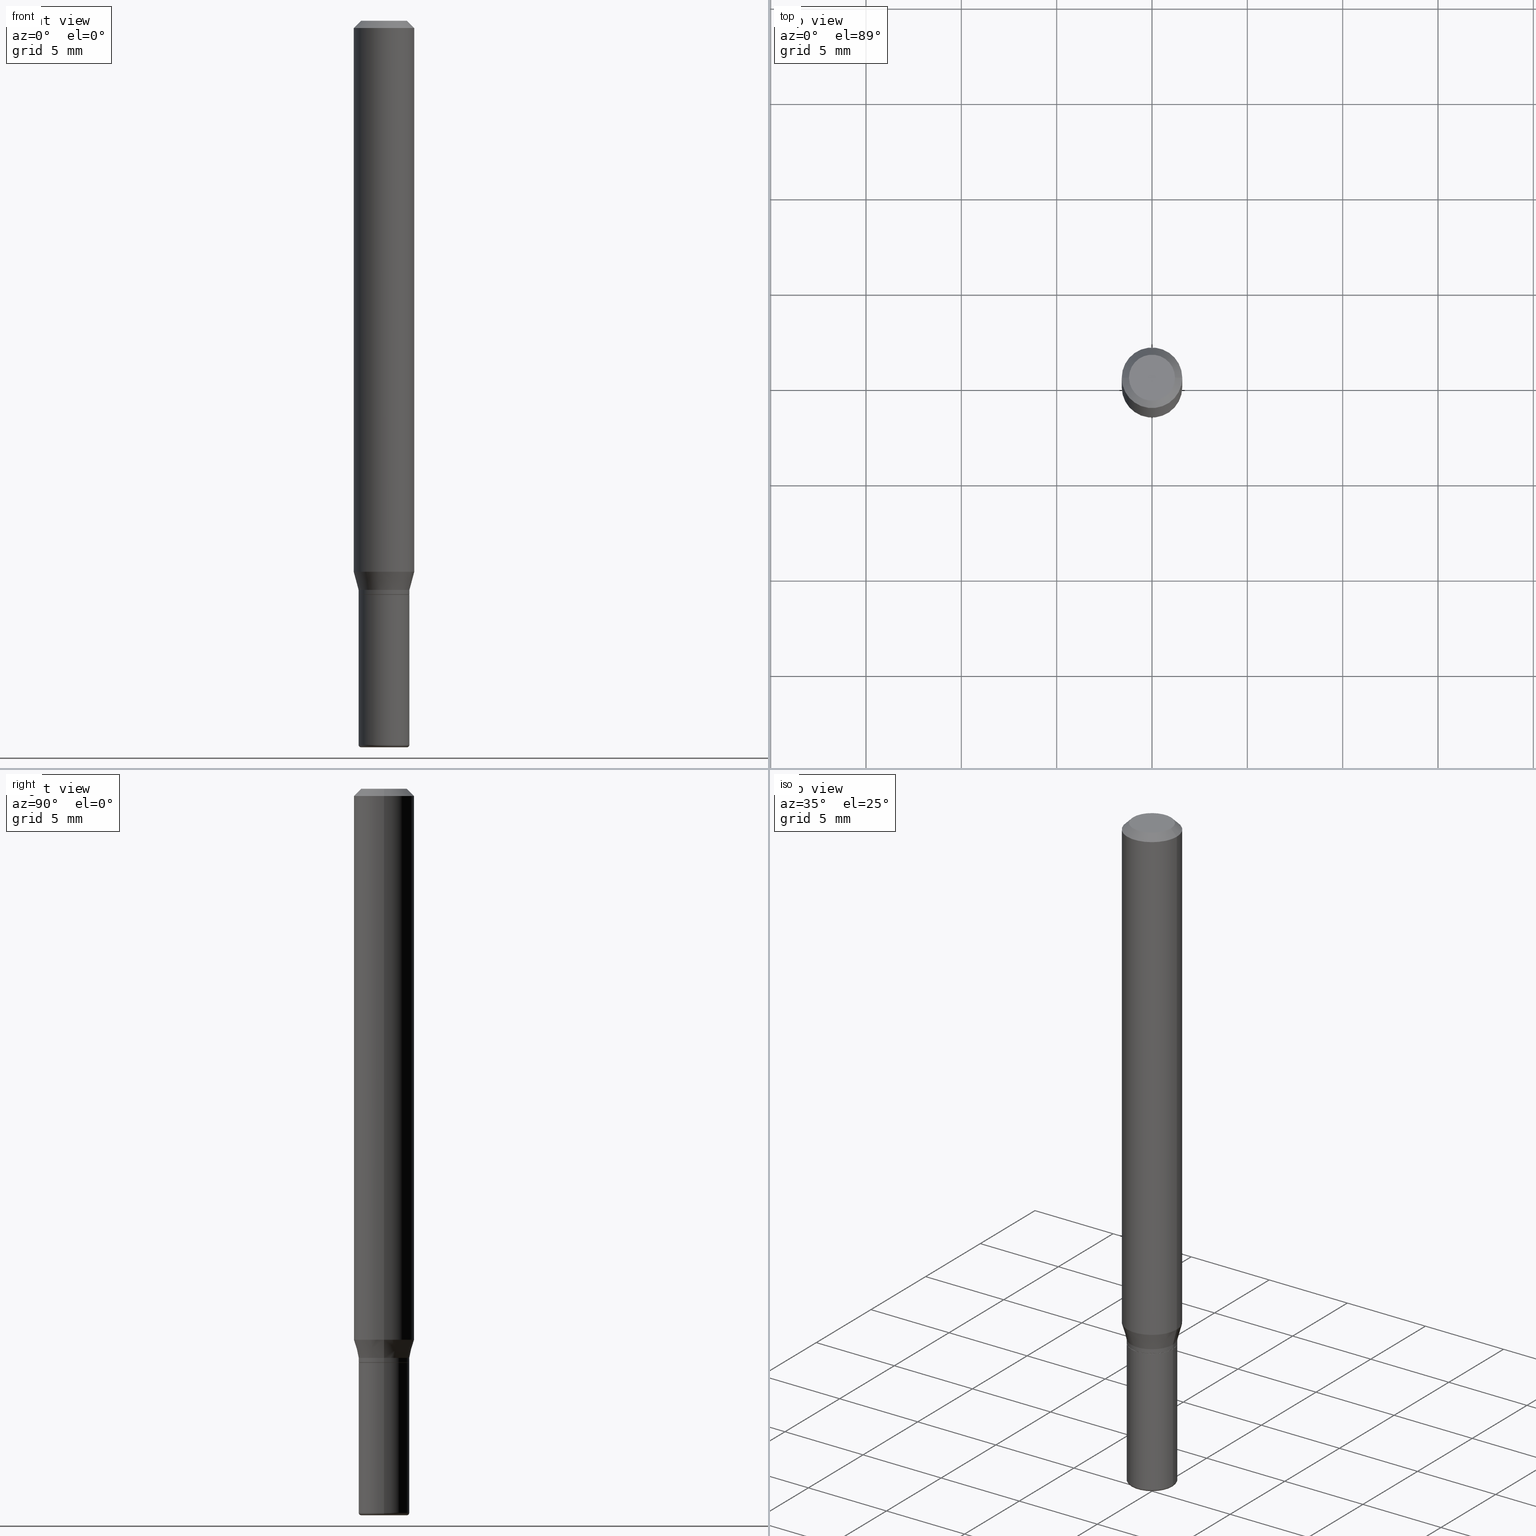
[diagram: canonical four-view strip — front | top / right | iso, engineering-drawing reading convention]
A machine part, canonical four-view strip (front | top / right | iso — engineering-drawing reading convention). The complete STEP part file that produces these views, byte-faithful:
ISO-10303-21;
HEADER;
FILE_DESCRIPTION (( 'STEP AP203' ),
    '1' );
FILE_NAME ('08743.STEP',
    '2024-02-29T20:45:07',
    ( '' ),
    ( '' ),
    'SwSTEP 2.0',
    'SolidWorks 2023',
    '' );
FILE_SCHEMA (( 'CONFIG_CONTROL_DESIGN' ));
ENDSEC;

DATA;
#1 = DIRECTION ( 'NONE',  ( -2.445468806185136877E-29, 3.491481338843145188E-15, 1.000000000000000000 ) ) ;
#2 = CIRCLE ( 'NONE', #320, 0.06250000000000000000 ) ;
#3 = EDGE_CURVE ( 'NONE', #406, #503, #52, .T. ) ;
#4 = AXIS2_PLACEMENT_3D ( 'NONE', #452, #369, #244 ) ;
#5 =( CONVERSION_BASED_UNIT ( 'INCH', #483 ) LENGTH_UNIT ( ) NAMED_UNIT ( #100 ) );
#6 = VERTEX_POINT ( 'NONE', #361 ) ;
#7 = DIRECTION ( 'NONE',  ( -2.445468806185136597E-29, 3.491481338843145583E-15, 1.000000000000000000 ) ) ;
#8 = DIRECTION ( 'NONE',  ( -2.445468806185136597E-29, 3.491481338843145583E-15, 1.000000000000000000 ) ) ;
#9 = CC_DESIGN_DATE_AND_TIME_ASSIGNMENT ( #30, #218, ( #459 ) ) ;
#10 = EDGE_LOOP ( 'NONE', ( #134, #460, #446, #449 ) ) ;
#11 = AXIS2_PLACEMENT_3D ( 'NONE', #239, #18, #179 ) ;
#12 = CIRCLE ( 'NONE', #334, 0.04749999999999998668 ) ;
#13 = ORIENTED_EDGE ( 'NONE', *, *, #278, .F. ) ;
#14 = LOCAL_TIME ( 15, 45, 7.000000000000000000, #506 ) ;
#15 = APPROVAL_STATUS ( 'not_yet_approved' ) ;
#16 = DATE_AND_TIME ( #56, #14 ) ;
#17 = EDGE_CURVE ( 'NONE', #265, #328, #381, .T. ) ;
#18 = DIRECTION ( 'NONE',  ( -2.438088387897960049E-29, 3.491481338843145188E-15, 1.000000000000000000 ) ) ;
#19 = DIRECTION ( 'NONE',  ( 1.000000000000000000, -6.982962677686258033E-15, 0.000000000000000000 ) ) ;
#20 = CARTESIAN_POINT ( 'NONE',  ( 0.06250000000000000000, -4.811533449433669144E-16, -0.01499999999999970281 ) ) ;
#21 = CIRCLE ( 'NONE', #233, 0.06250000000000000000 ) ;
#22 = VECTOR ( 'NONE', #246, 39.37007874015748143 ) ;
#23 = CARTESIAN_POINT ( 'NONE',  ( 0.05200000000000008782, -4.500519445768814483E-15, -1.185000000000000053 ) ) ;
#24 = DIRECTION ( 'NONE',  ( -2.445468806185136597E-29, 3.491481338843145583E-15, 1.000000000000000000 ) ) ;
#25 = APPROVAL_PERSON_ORGANIZATION ( #388, #232, #349 ) ;
#26 = CARTESIAN_POINT ( 'NONE',  ( 3.655975865246779122E-29, -5.219764601570503141E-15, -1.495000000000000107 ) ) ;
#27 = DIRECTION ( 'NONE',  ( -2.445468806185136597E-29, 3.491481338843145583E-15, 1.000000000000000000 ) ) ;
#28 = DIRECTION ( 'NONE',  ( -2.445468806185136597E-29, 3.491481338843145583E-15, 1.000000000000000000 ) ) ;
#29 = EDGE_CURVE ( 'NONE', #501, #105, #119, .T. ) ;
#30 = DATE_AND_TIME ( #270, #248 ) ;
#31 = DIRECTION ( 'NONE',  ( 1.000000000000000000, -6.982962677686258033E-15, 0.000000000000000000 ) ) ;
#32 = AXIS2_PLACEMENT_3D ( 'NONE', #464, #181, #159 ) ;
#33 = ADVANCED_FACE ( 'NONE', ( #500 ), #373, .T. ) ;
#34 = ORIENTED_EDGE ( 'NONE', *, *, #53, .F. ) ;
#35 = DIRECTION ( 'NONE',  ( -1.000000000000000000, 6.982962677686266711E-15, 0.000000000000000000 ) ) ;
#36 = ORIENTED_EDGE ( 'NONE', *, *, #53, .T. ) ;
#37 = CONICAL_SURFACE ( 'NONE', #172, 0.05200000000000008782, 0.7853981633975507526 ) ;
#38 = VECTOR ( 'NONE', #484, 39.37007874015748143 ) ;
#39 = CARTESIAN_POINT ( 'NONE',  ( 2.873425847267536398E-29, -4.102490573140697470E-15, -1.175000000000000488 ) ) ;
#40 = PRODUCT_RELATED_PRODUCT_CATEGORY ( 'detail', '', ( #243 ) ) ;
#41 = CARTESIAN_POINT ( 'NONE',  ( 0.05249999999999999806, -4.504010927107656701E-15, -1.185000000000000053 ) ) ;
#42 = CARTESIAN_POINT ( 'NONE',  ( -0.04749999999999998668, -4.873221937037561039E-15, -1.500000000000000444 ) ) ;
#43 = ORIENTED_EDGE ( 'NONE', *, *, #405, .F. ) ;
#44 = AXIS2_PLACEMENT_3D ( 'NONE', #515, #433, #157 ) ;
#45 = AXIS2_PLACEMENT_3D ( 'NONE', #72, #111, #225 ) ;
#46 = PRODUCT_DEFINITION_SHAPE ( 'NONE', 'NONE',  #459 ) ;
#47 = ORIENTED_EDGE ( 'NONE', *, *, #363, .F. ) ;
#48 = EDGE_CURVE ( 'NONE', #6, #470, #455, .T. ) ;
#49 = DIRECTION ( 'NONE',  ( -2.445468806185136597E-29, 3.491481338843145583E-15, 1.000000000000000000 ) ) ;
#50 = ORIENTED_EDGE ( 'NONE', *, *, #354, .T. ) ;
#51 = ORIENTED_EDGE ( 'NONE', *, *, #514, .T. ) ;
#52 = CIRCLE ( 'NONE', #467, 0.005000000000000177046 ) ;
#53 = EDGE_CURVE ( 'NONE', #91, #315, #81, .T. ) ;
#54 = EDGE_LOOP ( 'NONE', ( #427, #250 ) ) ;
#55 = ORGANIZATION ( 'UNSPECIFIED', 'UNSPECIFIED', '' ) ;
#56 = CALENDAR_DATE ( 2024, 29, 2 ) ;
#57 = DIRECTION ( 'NONE',  ( 1.000000000000000000, -6.982962677686265133E-15, 0.000000000000000000 ) ) ;
#58 = CARTESIAN_POINT ( 'NONE',  ( 3.668203209277632395E-31, -5.237222008264614861E-17, -0.01499999999999970281 ) ) ;
#59 = CALENDAR_DATE ( 2024, 29, 2 ) ;
#60 = MANIFOLD_SOLID_BREP ( 'Body-Move/Copy2[1]', #342 ) ;
#61 = DIRECTION ( 'NONE',  ( 1.000000000000000000, -6.982962677686266711E-15, 4.852736867747365086E-29 ) ) ;
#62 = CARTESIAN_POINT ( 'NONE',  ( 0.05250000000000007438, -4.469096113719226630E-15, -1.175000000000000488 ) ) ;
#63 = AXIS2_PLACEMENT_3D ( 'NONE', #58, #261, #35 ) ;
#64 = AXIS2_PLACEMENT_3D ( 'NONE', #404, #8, #174 ) ;
#65 = DIRECTION ( 'NONE',  ( 1.000000000000000000, -6.982962677686266711E-15, 4.876176775795935793E-29 ) ) ;
#66 = PERSON_AND_ORGANIZATION_ROLE ( 'design_supplier' ) ;
#67 = ORIENTED_EDGE ( 'NONE', *, *, #147, .F. ) ;
#68 = EDGE_LOOP ( 'NONE', ( #36, #473, #107, #370 ) ) ;
#69 = FACE_OUTER_BOUND ( 'NONE', #266, .T. ) ;
#70 = CC_DESIGN_DATE_AND_TIME_ASSIGNMENT ( #226, #341, ( #206 ) ) ;
#71 = FACE_OUTER_BOUND ( 'NONE', #176, .T. ) ;
#72 = CARTESIAN_POINT ( 'NONE',  ( 2.896657800926294581E-29, -4.135659645859706826E-15, -1.184500000000000108 ) ) ;
#73 = AXIS2_PLACEMENT_3D ( 'NONE', #486, #90, #288 ) ;
#74 = EDGE_CURVE ( 'NONE', #214, #367, #215, .T. ) ;
#75 = ORIENTED_EDGE ( 'NONE', *, *, #29, .F. ) ;
#76 = FACE_OUTER_BOUND ( 'NONE', #141, .T. ) ;
#77 = CARTESIAN_POINT ( 'NONE',  ( 3.668203209277632395E-31, -5.237222008264614861E-17, -0.01499999999999970281 ) ) ;
#78 = EDGE_LOOP ( 'NONE', ( #117, #335, #488, #260 ) ) ;
#79 = DIRECTION ( 'NONE',  ( -2.445468806185136597E-29, 3.491481338843145583E-15, 1.000000000000000000 ) ) ;
#80 = APPLICATION_CONTEXT ( 'configuration controlled 3d designs of mechanical parts and assemblies' ) ;
#81 = CIRCLE ( 'NONE', #182, 0.05250000000000008826 ) ;
#82 = EDGE_CURVE ( 'NONE', #105, #91, #382, .T. ) ;
#83 = LINE ( 'NONE', #326, #38 ) ;
#84 = DIRECTION ( 'NONE',  ( 1.000000000000000000, -6.982962677686270655E-15, 0.000000000000000000 ) ) ;
#85 = LINE ( 'NONE', #402, #183 ) ;
#86 = APPROVAL ( #177, 'UNSPECIFIED' ) ;
#87 = ORIENTED_EDGE ( 'NONE', *, *, #147, .T. ) ;
#88 = AXIS2_PLACEMENT_3D ( 'NONE', #123, #99, #104 ) ;
#89 =( GEOMETRIC_REPRESENTATION_CONTEXT ( 3 ) GLOBAL_UNCERTAINTY_ASSIGNED_CONTEXT ( ( #162 ) ) GLOBAL_UNIT_ASSIGNED_CONTEXT ( ( #5, #295, #411 ) ) REPRESENTATION_CONTEXT ( 'NONE', 'WORKASPACE' ) );
#90 = DIRECTION ( 'NONE',  ( -2.445468806185136597E-29, 3.491481338843145583E-15, 1.000000000000000000 ) ) ;
#91 = VERTEX_POINT ( 'NONE', #279 ) ;
#92 = CARTESIAN_POINT ( 'NONE',  ( 2.873425847267536398E-29, -4.102490573140697470E-15, -1.175000000000000488 ) ) ;
#93 =( LENGTH_UNIT ( ) NAMED_UNIT ( * ) SI_UNIT ( $, .METRE. ) );
#94 = ORIENTED_EDGE ( 'NONE', *, *, #471, .F. ) ;
#95 = AXIS2_PLACEMENT_3D ( 'NONE', #479, #219, #426 ) ;
#96 = ADVANCED_FACE ( 'NONE', ( #512 ), #163, .T. ) ;
#97 = DATE_AND_TIME ( #212, #493 ) ;
#98 = ORIENTED_EDGE ( 'NONE', *, *, #48, .T. ) ;
#99 = DIRECTION ( 'NONE',  ( 2.438088387897960049E-29, -3.491481338843145188E-15, -1.000000000000000000 ) ) ;
#100 = DIMENSIONAL_EXPONENTS ( 1.000000000000000000, 0.000000000000000000, 0.000000000000000000, 0.000000000000000000, 0.000000000000000000, 0.000000000000000000, 0.000000000000000000 ) ;
#101 = PERSON_AND_ORGANIZATION ( #191, #55 ) ;
#102 = PERSON_AND_ORGANIZATION_ROLE ( 'design_owner' ) ;
#103 = DIRECTION ( 'NONE',  ( 7.105427357601001859E-15, 1.000000000000000000, -3.491481338843145583E-15 ) ) ;
#104 = DIRECTION ( 'NONE',  ( -1.000000000000000000, 6.982962677686265922E-15, -4.876176775795935793E-29 ) ) ;
#105 = VERTEX_POINT ( 'NONE', #180 ) ;
#106 = ADVANCED_FACE ( 'NONE', ( #76 ), #415, .T. ) ;
#107 = ORIENTED_EDGE ( 'NONE', *, *, #509, .F. ) ;
#108 = LINE ( 'NONE', #428, #166 ) ;
#109 = CIRCLE ( 'NONE', #300, 0.05250000000000017153 ) ;
#110 = AXIS2_PLACEMENT_3D ( 'NONE', #387, #272, #505 ) ;
#111 = DIRECTION ( 'NONE',  ( -2.445468806185136597E-29, 3.491481338843145583E-15, 1.000000000000000000 ) ) ;
#112 = PERSON_AND_ORGANIZATION_ROLE ( 'creator' ) ;
#113 = LOCAL_TIME ( 15, 45, 7.000000000000000000, #336 ) ;
#114 = CARTESIAN_POINT ( 'NONE',  ( -0.06250000000000000000, -3.528097505788223835E-15, -1.137679491924311836 ) ) ;
#115 = ORIENTED_EDGE ( 'NONE', *, *, #278, .T. ) ;
#116 = ADVANCED_FACE ( 'NONE', ( #355 ), #476, .T. ) ;
#117 = ORIENTED_EDGE ( 'NONE', *, *, #481, .F. ) ;
#118 = CARTESIAN_POINT ( 'NONE',  ( -0.04749999999999999362, -4.882256802084455647E-15, -1.495000000000000107 ) ) ;
#119 = CIRCLE ( 'NONE', #95, 0.05200000000000008782 ) ;
#120 = DIRECTION ( 'NONE',  ( 0.7071067811865479058, -7.319954787623257623E-15, -0.7071067811865471286 ) ) ;
#121 = CC_DESIGN_SECURITY_CLASSIFICATION ( #206, ( #510 ) ) ;
#122 = CARTESIAN_POINT ( 'NONE',  ( 2.873425847267536398E-29, -4.102490573140697470E-15, -1.175000000000000488 ) ) ;
#123 = CARTESIAN_POINT ( 'NONE',  ( 3.316907271900976589E-16, 0.04750000000000000749, -2.925296391183627249E-17 ) ) ;
#124 = ADVANCED_FACE ( 'NONE', ( #245 ), #403, .F. ) ;
#125 = DIRECTION ( 'NONE',  ( -2.445468806185136597E-29, 3.491481338843145583E-15, 1.000000000000000000 ) ) ;
#126 = CARTESIAN_POINT ( 'NONE',  ( -0.05250000000000008826, -3.762624709585653503E-15, -1.184500000000000108 ) ) ;
#127 = DIRECTION ( 'NONE',  ( 2.438088387897960049E-29, -3.491481338843145188E-15, -1.000000000000000000 ) ) ;
#128 = DIRECTION ( 'NONE',  ( 1.000000000000000000, -6.982962677686266711E-15, 4.876176775795935793E-29 ) ) ;
#129 = LINE ( 'NONE', #287, #22 ) ;
#130 = EDGE_CURVE ( 'NONE', #155, #496, #457, .T. ) ;
#131 = CARTESIAN_POINT ( 'NONE',  ( -0.05250000000000017153, -4.305550057775760834E-15, -1.495000000000000107 ) ) ;
#132 = ORIENTED_EDGE ( 'NONE', *, *, #363, .T. ) ;
#133 = CARTESIAN_POINT ( 'NONE',  ( -6.680649051745406845E-45, 9.538196290434862081E-31, 2.731847993664263218E-16 ) ) ;
#134 = ORIENTED_EDGE ( 'NONE', *, *, #74, .F. ) ;
#135 = CONICAL_SURFACE ( 'NONE', #489, 0.05250000000000007438, 0.2617993877991492413 ) ;
#136 = LOCAL_TIME ( 15, 45, 7.000000000000000000, #356 ) ;
#137 = FACE_OUTER_BOUND ( 'NONE', #68, .T. ) ;
#138 = ORIENTED_EDGE ( 'NONE', *, *, #48, .F. ) ;
#139 = PERSON_AND_ORGANIZATION_ROLE ( 'classification_officer' ) ;
#140 = EDGE_CURVE ( 'NONE', #470, #503, #109, .T. ) ;
#141 = EDGE_LOOP ( 'NONE', ( #372, #307, #497, #416 ) ) ;
#142 = LINE ( 'NONE', #303, #268 ) ;
#143 = AXIS2_PLACEMENT_3D ( 'NONE', #299, #380, #451 ) ;
#144 = PERSON_AND_ORGANIZATION ( #191, #55 ) ;
#145 = DIRECTION ( 'NONE',  ( -2.445468806185136597E-29, 3.491481338843145583E-15, 1.000000000000000000 ) ) ;
#146 = DIRECTION ( 'NONE',  ( 1.000000000000000000, -6.982962677686265922E-15, 4.876176775795935793E-29 ) ) ;
#147 = EDGE_CURVE ( 'NONE', #503, #470, #454, .T. ) ;
#148 = ORIENTED_EDGE ( 'NONE', *, *, #441, .T. ) ;
#149 = CYLINDRICAL_SURFACE ( 'NONE', #32, 0.05250000000000008826 ) ;
#150 = LINE ( 'NONE', #309, #224 ) ;
#151 = APPROVAL_DATE_TIME ( #16, #491 ) ;
#152 = CARTESIAN_POINT ( 'NONE',  ( -0.06250000000000000000, -1.568190258010403558E-15, -0.01499999999999970281 ) ) ;
#153 = ORIENTED_EDGE ( 'NONE', *, *, #140, .F. ) ;
#154 = EDGE_CURVE ( 'NONE', #339, #496, #21, .T. ) ;
#155 = VERTEX_POINT ( 'NONE', #62 ) ;
#156 = DIRECTION ( 'NONE',  ( 0.2588190451025205729, 1.565188264969628081E-15, 0.9659258262890684232 ) ) ;
#157 = DIRECTION ( 'NONE',  ( 1.000000000000000000, -6.982962677686266711E-15, 0.000000000000000000 ) ) ;
#158 = CIRCLE ( 'NONE', #359, 0.04749999999999998668 ) ;
#159 = DIRECTION ( 'NONE',  ( 1.000000000000000000, -6.982962677686266711E-15, 4.876176775795936353E-29 ) ) ;
#160 = DIRECTION ( 'NONE',  ( 1.000000000000000000, -6.982962677686280121E-15, 0.000000000000000000 ) ) ;
#161 = CC_DESIGN_PERSON_AND_ORGANIZATION_ASSIGNMENT ( #375, #139, ( #206 ) ) ;
#162 = UNCERTAINTY_MEASURE_WITH_UNIT (LENGTH_MEASURE( 1.000000000000000082E-05 ), #5, 'distance_accuracy_value', 'NONE');
#163 = TOROIDAL_SURFACE ( 'NONE', #325, 0.04749999999999999362, 0.005000000000000177046 ) ;
#164 = CYLINDRICAL_SURFACE ( 'NONE', #143, 0.05250000000000008826 ) ;
#165 = DIRECTION ( 'NONE',  ( -2.445468806185136597E-29, 3.491481338843145583E-15, 1.000000000000000000 ) ) ;
#166 = VECTOR ( 'NONE', #478, 39.37007874015748143 ) ;
#167 = ADVANCED_FACE ( 'NONE', ( #504 ), #254, .T. ) ;
#168 = ORIENTED_EDGE ( 'NONE', *, *, #401, .T. ) ;
#169 = CARTESIAN_POINT ( 'NONE',  ( 0.000000000000000000, 0.000000000000000000, 0.000000000000000000 ) ) ;
#170 = EDGE_LOOP ( 'NONE', ( #312, #87, #397, #289 ) ) ;
#171 = DIRECTION ( 'NONE',  ( 1.000000000000000000, 0.000000000000000000, 0.000000000000000000 ) ) ;
#172 = AXIS2_PLACEMENT_3D ( 'NONE', #392, #27, #357 ) ;
#173 = TOROIDAL_SURFACE ( 'NONE', #517, 0.04749999999999999362, 0.005000000000000177046 ) ;
#174 = DIRECTION ( 'NONE',  ( 1.000000000000000000, -6.982962677686258033E-15, 0.000000000000000000 ) ) ;
#175 = ADVANCED_FACE ( 'NONE', ( #398 ), #149, .T. ) ;
#176 = EDGE_LOOP ( 'NONE', ( #115, #444, #153, #138 ) ) ;
#177 = APPROVAL_STATUS ( 'not_yet_approved' ) ;
#178 = ORIENTED_EDGE ( 'NONE', *, *, #82, .T. ) ;
#179 = DIRECTION ( 'NONE',  ( 1.000000000000000000, -6.982962677686265922E-15, 4.876176775795935793E-29 ) ) ;
#180 = CARTESIAN_POINT ( 'NONE',  ( 0.05200000000000008782, -4.500519445768814483E-15, -1.185000000000000053 ) ) ;
#181 = DIRECTION ( 'NONE',  ( -2.445468806185136597E-29, 3.491481338843145583E-15, 1.000000000000000000 ) ) ;
#182 = AXIS2_PLACEMENT_3D ( 'NONE', #417, #259, #57 ) ;
#183 = VECTOR ( 'NONE', #249, 39.37007874015748143 ) ;
#184 = CC_DESIGN_PERSON_AND_ORGANIZATION_ASSIGNMENT ( #466, #112, ( #459 ) ) ;
#185 = ORIENTED_EDGE ( 'NONE', *, *, #140, .T. ) ;
#186 = DIRECTION ( 'NONE',  ( 1.000000000000000000, -6.982962677686263555E-15, 0.000000000000000000 ) ) ;
#187 = SECURITY_CLASSIFICATION_LEVEL ( 'unclassified' ) ;
#188 = ORIENTED_EDGE ( 'NONE', *, *, #441, .F. ) ;
#189 = FACE_OUTER_BOUND ( 'NONE', #238, .T. ) ;
#190 = CARTESIAN_POINT ( 'NONE',  ( 2.897880535329386822E-29, -4.137405386529127541E-15, -1.185000000000000053 ) ) ;
#191 = PERSON ( 'UNSPECIFIED', 'UNSPECIFIED', 'UNSPECIFIED', ('UNSPECIFIED'), ('UNSPECIFIED'), ('UNSPECIFIED') ) ;
#192 = PERSON_AND_ORGANIZATION ( #191, #55 ) ;
#193 = AXIS2_PLACEMENT_3D ( 'NONE', #498, #474, #358 ) ;
#194 = CYLINDRICAL_SURFACE ( 'NONE', #241, 0.06250000000000000000 ) ;
#195 = EDGE_CURVE ( 'NONE', #214, #265, #379, .T. ) ;
#196 = EDGE_LOOP ( 'NONE', ( #13, #188 ) ) ;
#197 = DIRECTION ( 'NONE',  ( -6.982962677686266711E-15, -1.000000000000000000, 3.491481338843145583E-15 ) ) ;
#198 = DIRECTION ( 'NONE',  ( 1.000000000000000000, -6.982962677686270655E-15, 0.000000000000000000 ) ) ;
#199 = ORIENTED_EDGE ( 'NONE', *, *, #324, .T. ) ;
#200 = CIRCLE ( 'NONE', #45, 0.05250000000000008826 ) ;
#201 = ADVANCED_FACE ( 'NONE', ( #502 ), #480, .T. ) ;
#202 = VECTOR ( 'NONE', #156, 39.37007874015748143 ) ;
#203 = CARTESIAN_POINT ( 'NONE',  ( -0.05200000000000008782, -3.765273936759763915E-15, -1.185000000000000053 ) ) ;
#204 = AXIS2_PLACEMENT_3D ( 'NONE', #133, #49, #408 ) ;
#205 = ORIENTED_EDGE ( 'NONE', *, *, #350, .T. ) ;
#206 = SECURITY_CLASSIFICATION ( '', '', #187 ) ;
#207 = DIRECTION ( 'NONE',  ( -2.445468806185136597E-29, 3.491481338843145583E-15, 1.000000000000000000 ) ) ;
#208 = CARTESIAN_POINT ( 'NONE',  ( 3.666055405785579535E-16, 0.05249999999999585554, -1.185000000000000275 ) ) ;
#209 = DIRECTION ( 'NONE',  ( 0.000000000000000000, 0.000000000000000000, 1.000000000000000000 ) ) ;
#210 = VERTEX_POINT ( 'NONE', #280 ) ;
#211 = EDGE_CURVE ( 'NONE', #210, #339, #108, .T. ) ;
#212 = CALENDAR_DATE ( 2024, 29, 2 ) ;
#213 = CYLINDRICAL_SURFACE ( 'NONE', #407, 0.05250000000000008132 ) ;
#214 = VERTEX_POINT ( 'NONE', #258 ) ;
#215 = CIRCLE ( 'NONE', #475, 0.04750000000000000749 ) ;
#216 = APPROVAL_PERSON_ORGANIZATION ( #264, #491, #389 ) ;
#217 = COORDINATED_UNIVERSAL_TIME_OFFSET ( 5, 0, .BEHIND. ) ;
#218 = DATE_TIME_ROLE ( 'creation_date' ) ;
#219 = DIRECTION ( 'NONE',  ( -2.445468806185136597E-29, 3.491481338843145583E-15, 1.000000000000000000 ) ) ;
#220 = CC_DESIGN_PERSON_AND_ORGANIZATION_ASSIGNMENT ( #144, #102, ( #243 ) ) ;
#221 = DIRECTION ( 'NONE',  ( 1.000000000000000000, -6.982962677686263555E-15, 0.000000000000000000 ) ) ;
#222 = VERTEX_POINT ( 'NONE', #434 ) ;
#223 = PLANE ( 'NONE',  #240 ) ;
#224 = VECTOR ( 'NONE', #465, 39.37007874015748143 ) ;
#225 = DIRECTION ( 'NONE',  ( 1.000000000000000000, -6.982962677686265133E-15, 0.000000000000000000 ) ) ;
#226 = DATE_AND_TIME ( #59, #113 ) ;
#227 = DIRECTION ( 'NONE',  ( -2.445468806185136597E-29, 3.491481338843145583E-15, 1.000000000000000000 ) ) ;
#228 = EDGE_LOOP ( 'NONE', ( #50, #337, #34, #440 ) ) ;
#229 = FACE_OUTER_BOUND ( 'NONE', #331, .T. ) ;
#230 = ORIENTED_EDGE ( 'NONE', *, *, #499, .F. ) ;
#231 = FACE_OUTER_BOUND ( 'NONE', #304, .T. ) ;
#232 = APPROVAL ( #15, 'UNSPECIFIED' ) ;
#233 = AXIS2_PLACEMENT_3D ( 'NONE', #236, #322, #198 ) ;
#234 = CIRCLE ( 'NONE', #468, 0.05250000000000007438 ) ;
#235 = DIRECTION ( 'NONE',  ( -2.445468806185136597E-29, 3.491481338843145583E-15, 1.000000000000000000 ) ) ;
#236 = CARTESIAN_POINT ( 'NONE',  ( 2.782159708937459794E-29, -3.972186715638285663E-15, -1.137679491924311836 ) ) ;
#237 = ADVANCED_FACE ( 'NONE', ( #516 ), #223, .F. ) ;
#238 = EDGE_LOOP ( 'NONE', ( #374, #75 ) ) ;
#239 = CARTESIAN_POINT ( 'NONE',  ( 2.897880535329386822E-29, -4.137405386529127541E-15, -1.185000000000000053 ) ) ;
#240 = AXIS2_PLACEMENT_3D ( 'NONE', #423, #385, #146 ) ;
#241 = AXIS2_PLACEMENT_3D ( 'NONE', #394, #469, #65 ) ;
#242 = FACE_OUTER_BOUND ( 'NONE', #257, .T. ) ;
#243 = PRODUCT ( '08743', '08743', '', ( #490 ) ) ;
#244 = DIRECTION ( 'NONE',  ( 1.000000000000000000, -6.982962677686258822E-15, 0.000000000000000000 ) ) ;
#245 = FACE_OUTER_BOUND ( 'NONE', #54, .T. ) ;
#246 = DIRECTION ( 'NONE',  ( -2.445468806185136877E-29, 3.491481338843145188E-15, 1.000000000000000000 ) ) ;
#247 = ORIENTED_EDGE ( 'NONE', *, *, #386, .F. ) ;
#248 = LOCAL_TIME ( 15, 45, 7.000000000000000000, #217 ) ;
#249 = DIRECTION ( 'NONE',  ( -2.445468806185136877E-29, 3.491481338843145188E-15, 1.000000000000000000 ) ) ;
#250 = ORIENTED_EDGE ( 'NONE', *, *, #329, .T. ) ;
#251 = CC_DESIGN_PERSON_AND_ORGANIZATION_ASSIGNMENT ( #429, #66, ( #510 ) ) ;
#252 = EDGE_LOOP ( 'NONE', ( #185, #205, #230, #43 ) ) ;
#253 = DIRECTION ( 'NONE',  ( -2.445468806185136597E-29, 3.491481338843145583E-15, 1.000000000000000000 ) ) ;
#254 = CONICAL_SURFACE ( 'NONE', #63, 0.06250000000000000000, 0.7853981633974488341 ) ;
#255 = SHAPE_DEFINITION_REPRESENTATION ( #46, #332 ) ;
#256 = EDGE_CURVE ( 'NONE', #328, #265, #2, .T. ) ;
#257 = EDGE_LOOP ( 'NONE', ( #294, #199, #412, #384 ) ) ;
#258 = CARTESIAN_POINT ( 'NONE',  ( 0.04750000000000000749, -4.035134999187568762E-16, 2.731847993664288856E-16 ) ) ;
#259 = DIRECTION ( 'NONE',  ( -2.445468806185136597E-29, 3.491481338843145583E-15, 1.000000000000000000 ) ) ;
#260 = ORIENTED_EDGE ( 'NONE', *, *, #256, .F. ) ;
#261 = DIRECTION ( 'NONE',  ( 2.445468806185136597E-29, -3.491481338843145583E-15, -1.000000000000000000 ) ) ;
#262 = CARTESIAN_POINT ( 'NONE',  ( 0.05250000000000008132, -3.666055405785295545E-16, 2.559992807292870215E-30 ) ) ;
#263 = PERSON_AND_ORGANIZATION_ROLE ( 'creator' ) ;
#264 = PERSON_AND_ORGANIZATION ( #191, #55 ) ;
#265 = VERTEX_POINT ( 'NONE', #461 ) ;
#266 = EDGE_LOOP ( 'NONE', ( #51, #462 ) ) ;
#267 = CARTESIAN_POINT ( 'NONE',  ( 3.655975865246779122E-29, -5.219764601570503141E-15, -1.495000000000000107 ) ) ;
#268 = VECTOR ( 'NONE', #485, 39.37007874015748143 ) ;
#269 = APPLICATION_CONTEXT ( 'configuration controlled 3d designs of mechanical parts and assemblies' ) ;
#270 = CALENDAR_DATE ( 2024, 29, 2 ) ;
#271 = ADVANCED_FACE ( 'NONE', ( #69 ), #340, .F. ) ;
#272 = DIRECTION ( 'NONE',  ( -2.445468806185136597E-29, 3.491481338843145583E-15, 1.000000000000000000 ) ) ;
#273 = ORIENTED_EDGE ( 'NONE', *, *, #3, .F. ) ;
#274 = AXIS2_PLACEMENT_3D ( 'NONE', #518, #227, #343 ) ;
#275 = VECTOR ( 'NONE', #431, 39.37007874015748143 ) ;
#276 = CARTESIAN_POINT ( 'NONE',  ( 0.000000000000000000, 0.000000000000000000, 0.000000000000000000 ) ) ;
#277 = DIRECTION ( 'NONE',  ( -1.000000000000000000, 6.982962677686266711E-15, 0.000000000000000000 ) ) ;
#278 = EDGE_CURVE ( 'NONE', #6, #406, #158, .T. ) ;
#279 = CARTESIAN_POINT ( 'NONE',  ( 0.05250000000000008826, -4.502265186438236775E-15, -1.184500000000000108 ) ) ;
#280 = CARTESIAN_POINT ( 'NONE',  ( -0.05250000000000007438, -3.628776571327434780E-15, -1.175000000000000488 ) ) ;
#281 = CALENDAR_DATE ( 2024, 29, 2 ) ;
#282 = CARTESIAN_POINT ( 'NONE',  ( 3.655975865246779122E-29, -5.219764601570503141E-15, -1.495000000000000107 ) ) ;
#283 = FACE_OUTER_BOUND ( 'NONE', #252, .T. ) ;
#284 = ADVANCED_FACE ( 'NONE', ( #229 ), #37, .T. ) ;
#285 = DIRECTION ( 'NONE',  ( 1.000000000000000000, -6.982962677686258033E-15, 0.000000000000000000 ) ) ;
#286 = CARTESIAN_POINT ( 'NONE',  ( 0.06250000000000000000, -4.364351673553916694E-16, 3.047610484872459871E-30 ) ) ;
#287 = CARTESIAN_POINT ( 'NONE',  ( 0.05250000000000008826, -3.666055405785296038E-16, 2.559992807292870916E-30 ) ) ;
#288 = DIRECTION ( 'NONE',  ( 1.000000000000000000, -6.982962677686266711E-15, 4.876176775795935793E-29 ) ) ;
#289 = ORIENTED_EDGE ( 'NONE', *, *, #329, .F. ) ;
#290 = DIRECTION ( 'NONE',  ( 1.000000000000000000, -6.982962677686266711E-15, 4.876176775795935793E-29 ) ) ;
#291 = AXIS2_PLACEMENT_3D ( 'NONE', #208, #127, #347 ) ;
#292 = CIRCLE ( 'NONE', #4, 0.05249999999999999806 ) ;
#293 = ADVANCED_FACE ( 'NONE', ( #189 ), #513, .F. ) ;
#294 = ORIENTED_EDGE ( 'NONE', *, *, #211, .F. ) ;
#295 =( NAMED_UNIT ( * ) PLANE_ANGLE_UNIT ( ) SI_UNIT ( $, .RADIAN. ) );
#296 = ORIENTED_EDGE ( 'NONE', *, *, #481, .T. ) ;
#297 = CYLINDRICAL_SURFACE ( 'NONE', #73, 0.05250000000000008132 ) ;
#298 = EDGE_CURVE ( 'NONE', #315, #210, #142, .T. ) ;
#299 = CARTESIAN_POINT ( 'NONE',  ( 0.000000000000000000, 0.000000000000000000, 0.000000000000000000 ) ) ;
#300 = AXIS2_PLACEMENT_3D ( 'NONE', #267, #319, #221 ) ;
#301 = ORIENTED_EDGE ( 'NONE', *, *, #17, .F. ) ;
#302 = CIRCLE ( 'NONE', #64, 0.05250000000000007438 ) ;
#303 = CARTESIAN_POINT ( 'NONE',  ( -0.05250000000000008132, 3.730349362740531754E-16, -2.582440922383829865E-30 ) ) ;
#304 = EDGE_LOOP ( 'NONE', ( #391, #296, #301, #94 ) ) ;
#305 = DIRECTION ( 'NONE',  ( 1.000000000000000000, -6.982962677686266711E-15, 0.000000000000000000 ) ) ;
#306 = DIRECTION ( 'NONE',  ( 0.7071067811866199593, -2.468850131083015945E-15, 0.7071067811864750752 ) ) ;
#307 = ORIENTED_EDGE ( 'NONE', *, *, #211, .T. ) ;
#308 = DIRECTION ( 'NONE',  ( 2.445468806185136597E-29, -3.491481338843145583E-15, -1.000000000000000000 ) ) ;
#309 = CARTESIAN_POINT ( 'NONE',  ( -0.05200000000000008782, -3.767923163933875116E-15, -1.185000000000000053 ) ) ;
#310 = COORDINATED_UNIVERSAL_TIME_OFFSET ( 5, 0, .BEHIND. ) ;
#311 = ADVANCED_FACE ( 'NONE', ( #242 ), #135, .T. ) ;
#312 = ORIENTED_EDGE ( 'NONE', *, *, #350, .F. ) ;
#313 = CIRCLE ( 'NONE', #445, 0.06250000000000000000 ) ;
#314 = DIRECTION ( 'NONE',  ( 1.000000000000000000, -6.982962677686258822E-15, 0.000000000000000000 ) ) ;
#315 = VERTEX_POINT ( 'NONE', #126 ) ;
#316 = ADVANCED_FACE ( 'NONE', ( #283 ), #164, .T. ) ;
#317 = DIRECTION ( 'NONE',  ( -2.445468806185136597E-29, 3.491481338843145583E-15, 1.000000000000000000 ) ) ;
#318 = DATE_AND_TIME ( #281, #136 ) ;
#319 = DIRECTION ( 'NONE',  ( -2.445468806185136597E-29, 3.491481338843145583E-15, 1.000000000000000000 ) ) ;
#320 = AXIS2_PLACEMENT_3D ( 'NONE', #77, #24, #305 ) ;
#321 = DIRECTION ( 'NONE',  ( 1.000000000000000000, -6.982962677686263555E-15, 4.883557194083111780E-29 ) ) ;
#322 = DIRECTION ( 'NONE',  ( -2.445468806185136597E-29, 3.491481338843145583E-15, 1.000000000000000000 ) ) ;
#323 = EDGE_LOOP ( 'NONE', ( #273, #148, #98, #67 ) ) ;
#324 = EDGE_CURVE ( 'NONE', #210, #155, #234, .T. ) ;
#325 = AXIS2_PLACEMENT_3D ( 'NONE', #26, #145, #321 ) ;
#326 = CARTESIAN_POINT ( 'NONE',  ( -0.06250000000000000000, 3.840629472727455270E-16, -0.01499999999999970281 ) ) ;
#327 = DIRECTION ( 'NONE',  ( 1.000000000000000000, -6.982962677686263555E-15, 0.000000000000000000 ) ) ;
#328 = VERTEX_POINT ( 'NONE', #152 ) ;
#329 = EDGE_CURVE ( 'NONE', #222, #492, #432, .T. ) ;
#330 = FACE_OUTER_BOUND ( 'NONE', #511, .T. ) ;
#331 = EDGE_LOOP ( 'NONE', ( #247, #422, #178, #47 ) ) ;
#332 = ADVANCED_BREP_SHAPE_REPRESENTATION ( '08743', ( #60, #413, #477 ), #89 ) ;
#333 = CLOSED_SHELL ( 'NONE', ( #414, #33, #201, #368, #106, #311, #116, #167, #271, #293, #284, #421 ) ) ;
#334 = AXIS2_PLACEMENT_3D ( 'NONE', #442, #207, #327 ) ;
#335 = ORIENTED_EDGE ( 'NONE', *, *, #154, .T. ) ;
#336 = COORDINATED_UNIVERSAL_TIME_OFFSET ( 5, 0, .BEHIND. ) ;
#337 = ORIENTED_EDGE ( 'NONE', *, *, #386, .T. ) ;
#338 = APPROVAL_ROLE ( '' ) ;
#339 = VERTEX_POINT ( 'NONE', #114 ) ;
#340 = PLANE ( 'NONE',  #88 ) ;
#341 = DATE_TIME_ROLE ( 'classification_date' ) ;
#342 = CLOSED_SHELL ( 'NONE', ( #395, #316, #124, #175, #96, #237 ) ) ;
#343 = DIRECTION ( 'NONE',  ( 1.000000000000000000, -6.982962677686274599E-15, 0.000000000000000000 ) ) ;
#344 = VECTOR ( 'NONE', #424, 39.37007874015748143 ) ;
#345 = CARTESIAN_POINT ( 'NONE',  ( 3.668203209277632395E-31, -5.237222008264614861E-17, -0.01499999999999970281 ) ) ;
#346 = ORIENTED_EDGE ( 'NONE', *, *, #195, .F. ) ;
#347 = DIRECTION ( 'NONE',  ( -1.000000000000000000, 6.982962677686265922E-15, -4.876176775795935793E-29 ) ) ;
#348 = LINE ( 'NONE', #262, #344 ) ;
#349 = APPROVAL_ROLE ( '' ) ;
#350 = EDGE_CURVE ( 'NONE', #503, #222, #507, .T. ) ;
#351 = CARTESIAN_POINT ( 'NONE',  ( -0.05250000000000008826, 3.730349362740532247E-16, -2.582440922383829865E-30 ) ) ;
#352 = AXIS2_PLACEMENT_3D ( 'NONE', #276, #235, #290 ) ;
#353 = CC_DESIGN_APPROVAL ( #232, ( #206 ) ) ;
#354 = EDGE_CURVE ( 'NONE', #105, #501, #383, .T. ) ;
#355 = FACE_OUTER_BOUND ( 'NONE', #78, .T. ) ;
#356 = COORDINATED_UNIVERSAL_TIME_OFFSET ( 5, 0, .BEHIND. ) ;
#357 = DIRECTION ( 'NONE',  ( 1.000000000000000000, -6.982962677686274599E-15, 0.000000000000000000 ) ) ;
#358 = DIRECTION ( 'NONE',  ( 1.000000000000000000, -6.982962677686263555E-15, 0.000000000000000000 ) ) ;
#359 = AXIS2_PLACEMENT_3D ( 'NONE', #435, #79, #186 ) ;
#360 = AXIS2_PLACEMENT_3D ( 'NONE', #190, #28, #314 ) ;
#361 = CARTESIAN_POINT ( 'NONE',  ( 0.04749999999999998668, -5.568912735454817265E-15, -1.500000000000000444 ) ) ;
#362 = CC_DESIGN_APPROVAL ( #86, ( #510 ) ) ;
#363 = EDGE_CURVE ( 'NONE', #315, #91, #200, .T. ) ;
#364 = LINE ( 'NONE', #286, #400 ) ;
#365 = AXIS2_PLACEMENT_3D ( 'NONE', #122, #317, #19 ) ;
#366 = CIRCLE ( 'NONE', #204, 0.04750000000000000749 ) ;
#367 = VERTEX_POINT ( 'NONE', #393 ) ;
#368 = ADVANCED_FACE ( 'NONE', ( #231 ), #194, .T. ) ;
#369 = DIRECTION ( 'NONE',  ( -2.445468806185136597E-29, 3.491481338843145583E-15, 1.000000000000000000 ) ) ;
#370 = ORIENTED_EDGE ( 'NONE', *, *, #376, .F. ) ;
#371 = CARTESIAN_POINT ( 'NONE',  ( 0.05250000000000017153, -5.586370142149033090E-15, -1.495000000000000107 ) ) ;
#372 = ORIENTED_EDGE ( 'NONE', *, *, #509, .T. ) ;
#373 = CONICAL_SURFACE ( 'NONE', #274, 0.05200000000000008782, 0.7853981633975507526 ) ;
#374 = ORIENTED_EDGE ( 'NONE', *, *, #354, .F. ) ;
#375 = PERSON_AND_ORGANIZATION ( #191, #55 ) ;
#376 = EDGE_CURVE ( 'NONE', #91, #155, #348, .T. ) ;
#377 = ORIENTED_EDGE ( 'NONE', *, *, #324, .F. ) ;
#378 = CARTESIAN_POINT ( 'NONE',  ( 0.04749999999999999362, -5.551455328760600652E-15, -1.495000000000000107 ) ) ;
#379 = LINE ( 'NONE', #20, #425 ) ;
#380 = DIRECTION ( 'NONE',  ( -2.445468806185136597E-29, 3.491481338843145583E-15, 1.000000000000000000 ) ) ;
#381 = CIRCLE ( 'NONE', #44, 0.06250000000000000000 ) ;
#382 = LINE ( 'NONE', #23, #508 ) ;
#383 = CIRCLE ( 'NONE', #110, 0.05200000000000008782 ) ;
#384 = ORIENTED_EDGE ( 'NONE', *, *, #154, .F. ) ;
#385 = DIRECTION ( 'NONE',  ( -2.438088387897960049E-29, 3.491481338843145188E-15, 1.000000000000000000 ) ) ;
#386 = EDGE_CURVE ( 'NONE', #501, #315, #150, .T. ) ;
#387 = CARTESIAN_POINT ( 'NONE',  ( 2.897880535329386822E-29, -4.137405386529127541E-15, -1.185000000000000053 ) ) ;
#388 = PERSON_AND_ORGANIZATION ( #191, #55 ) ;
#389 = APPROVAL_ROLE ( '' ) ;
#390 = CARTESIAN_POINT ( 'NONE',  ( -6.680649051745406845E-45, 9.538196290434862081E-31, 2.731847993664263218E-16 ) ) ;
#391 = ORIENTED_EDGE ( 'NONE', *, *, #450, .T. ) ;
#392 = CARTESIAN_POINT ( 'NONE',  ( 2.897880535329386822E-29, -4.137405386529127541E-15, -1.185000000000000053 ) ) ;
#393 = CARTESIAN_POINT ( 'NONE',  ( -0.04750000000000000749, 3.578768372314221353E-16, 2.731847993664239060E-16 ) ) ;
#394 = CARTESIAN_POINT ( 'NONE',  ( 0.000000000000000000, 0.000000000000000000, 0.000000000000000000 ) ) ;
#395 = ADVANCED_FACE ( 'NONE', ( #71 ), #173, .T. ) ;
#396 = AXIS2_PLACEMENT_3D ( 'NONE', #345, #308, #277 ) ;
#397 = ORIENTED_EDGE ( 'NONE', *, *, #405, .T. ) ;
#398 = FACE_OUTER_BOUND ( 'NONE', #170, .T. ) ;
#399 = DIRECTION ( 'NONE',  ( -1.000000000000000000, 7.105427357601061812E-15, 0.000000000000000000 ) ) ;
#400 = VECTOR ( 'NONE', #1, 39.37007874015748143 ) ;
#401 = EDGE_CURVE ( 'NONE', #367, #328, #83, .T. ) ;
#402 = CARTESIAN_POINT ( 'NONE',  ( -0.06250000000000000000, 4.440892098500626162E-16, -3.074334431409316114E-30 ) ) ;
#403 = PLANE ( 'NONE',  #291 ) ;
#404 = CARTESIAN_POINT ( 'NONE',  ( 2.873425847267536398E-29, -4.102490573140697470E-15, -1.175000000000000488 ) ) ;
#405 = EDGE_CURVE ( 'NONE', #470, #492, #129, .T. ) ;
#406 = VERTEX_POINT ( 'NONE', #42 ) ;
#407 = AXIS2_PLACEMENT_3D ( 'NONE', #169, #165, #128 ) ;
#408 = DIRECTION ( 'NONE',  ( 1.000000000000000000, -6.982962677686266711E-15, 4.852736867747365086E-29 ) ) ;
#409 = CARTESIAN_POINT ( 'NONE',  ( 0.000000000000000000, 0.000000000000000000, 0.000000000000000000 ) ) ;
#410 = ORIENTED_EDGE ( 'NONE', *, *, #298, .F. ) ;
#411 =( NAMED_UNIT ( * ) SI_UNIT ( $, .STERADIAN. ) SOLID_ANGLE_UNIT ( ) );
#412 = ORIENTED_EDGE ( 'NONE', *, *, #130, .T. ) ;
#413 = MANIFOLD_SOLID_BREP ( 'Body-Move/Copy2[2]', #333 ) ;
#414 = ADVANCED_FACE ( 'NONE', ( #137 ), #297, .T. ) ;
#415 = CONICAL_SURFACE ( 'NONE', #365, 0.05250000000000007438, 0.2617993877991492413 ) ;
#416 = ORIENTED_EDGE ( 'NONE', *, *, #130, .F. ) ;
#417 = CARTESIAN_POINT ( 'NONE',  ( 2.896657800926294581E-29, -4.135659645859706826E-15, -1.184500000000000108 ) ) ;
#418 = CARTESIAN_POINT ( 'NONE',  ( 0.05250000000000007438, -4.469096113719226630E-15, -1.175000000000000488 ) ) ;
#419 = APPROVAL_STATUS ( 'not_yet_approved' ) ;
#420 = DIRECTION ( 'NONE',  ( -2.445468806185136597E-29, 3.491481338843145583E-15, 1.000000000000000000 ) ) ;
#421 = ADVANCED_FACE ( 'NONE', ( #330 ), #213, .T. ) ;
#422 = ORIENTED_EDGE ( 'NONE', *, *, #29, .T. ) ;
#423 = CARTESIAN_POINT ( 'NONE',  ( 3.582686580359767159E-29, -5.359686688179454114E-15, -1.500000000000000444 ) ) ;
#424 = DIRECTION ( 'NONE',  ( -2.445468806185136877E-29, 3.491481338843145188E-15, 1.000000000000000000 ) ) ;
#425 = VECTOR ( 'NONE', #120, 39.37007874015748143 ) ;
#426 = DIRECTION ( 'NONE',  ( 1.000000000000000000, -6.982962677686274599E-15, 0.000000000000000000 ) ) ;
#427 = ORIENTED_EDGE ( 'NONE', *, *, #499, .T. ) ;
#428 = CARTESIAN_POINT ( 'NONE',  ( -0.05250000000000007438, -3.729455636866644935E-15, -1.175000000000000488 ) ) ;
#429 = PERSON_AND_ORGANIZATION ( #191, #55 ) ;
#430 = APPLICATION_PROTOCOL_DEFINITION ( 'international standard', 'config_control_design', 1994, #80 ) ;
#431 = DIRECTION ( 'NONE',  ( -2.445468806185136877E-29, 3.491481338843145188E-15, 1.000000000000000000 ) ) ;
#432 = CIRCLE ( 'NONE', #360, 0.05249999999999999806 ) ;
#433 = DIRECTION ( 'NONE',  ( -2.445468806185136597E-29, 3.491481338843145583E-15, 1.000000000000000000 ) ) ;
#434 = CARTESIAN_POINT ( 'NONE',  ( -0.05249999999999999806, -4.305550057775762412E-15, -1.185000000000000053 ) ) ;
#435 = CARTESIAN_POINT ( 'NONE',  ( 3.668203209277706016E-29, -5.237222008264719754E-15, -1.500000000000000444 ) ) ;
#436 = CC_DESIGN_PERSON_AND_ORGANIZATION_ASSIGNMENT ( #101, #263, ( #510 ) ) ;
#437 = APPROVAL_DATE_TIME ( #318, #86 ) ;
#438 = AXIS2_PLACEMENT_3D ( 'NONE', #378, #197, #160 ) ;
#439 = DESIGN_CONTEXT ( 'detailed design', #80, 'design' ) ;
#440 = ORIENTED_EDGE ( 'NONE', *, *, #82, .F. ) ;
#441 = EDGE_CURVE ( 'NONE', #406, #6, #12, .T. ) ;
#442 = CARTESIAN_POINT ( 'NONE',  ( 3.668203209277706016E-29, -5.237222008264719754E-15, -1.500000000000000444 ) ) ;
#443 = APPLICATION_PROTOCOL_DEFINITION ( 'international standard', 'config_control_design', 1994, #269 ) ;
#444 = ORIENTED_EDGE ( 'NONE', *, *, #3, .T. ) ;
#445 = AXIS2_PLACEMENT_3D ( 'NONE', #487, #448, #84 ) ;
#446 = ORIENTED_EDGE ( 'NONE', *, *, #17, .T. ) ;
#447 = CC_DESIGN_APPROVAL ( #491, ( #459 ) ) ;
#448 = DIRECTION ( 'NONE',  ( -2.445468806185136597E-29, 3.491481338843145583E-15, 1.000000000000000000 ) ) ;
#449 = ORIENTED_EDGE ( 'NONE', *, *, #401, .F. ) ;
#450 = EDGE_CURVE ( 'NONE', #496, #339, #313, .T. ) ;
#451 = DIRECTION ( 'NONE',  ( 1.000000000000000000, -6.982962677686266711E-15, 4.876176775795936353E-29 ) ) ;
#452 = CARTESIAN_POINT ( 'NONE',  ( 2.897880535329386822E-29, -4.137405386529127541E-15, -1.185000000000000053 ) ) ;
#453 = ORIENTED_EDGE ( 'NONE', *, *, #256, .T. ) ;
#454 = CIRCLE ( 'NONE', #193, 0.05250000000000017153 ) ;
#455 = CIRCLE ( 'NONE', #438, 0.005000000000000177046 ) ;
#456 = ORIENTED_EDGE ( 'NONE', *, *, #376, .T. ) ;
#457 = LINE ( 'NONE', #418, #202 ) ;
#458 = APPROVAL_PERSON_ORGANIZATION ( #192, #86, #338 ) ;
#459 = PRODUCT_DEFINITION ( 'UNKNOWN', '', #510, #439 ) ;
#460 = ORIENTED_EDGE ( 'NONE', *, *, #195, .T. ) ;
#461 = CARTESIAN_POINT ( 'NONE',  ( 0.06250000000000000000, -4.888073874380378612E-16, -0.01499999999999970281 ) ) ;
#462 = ORIENTED_EDGE ( 'NONE', *, *, #74, .T. ) ;
#463 = ORIENTED_EDGE ( 'NONE', *, *, #514, .F. ) ;
#464 = CARTESIAN_POINT ( 'NONE',  ( 0.000000000000000000, 0.000000000000000000, 0.000000000000000000 ) ) ;
#465 = DIRECTION ( 'NONE',  ( -0.7071067811866199593, 7.493145998870616062E-15, 0.7071067811864750752 ) ) ;
#466 = PERSON_AND_ORGANIZATION ( #191, #55 ) ;
#467 = AXIS2_PLACEMENT_3D ( 'NONE', #118, #103, #399 ) ;
#468 = AXIS2_PLACEMENT_3D ( 'NONE', #92, #253, #31 ) ;
#469 = DIRECTION ( 'NONE',  ( -2.445468806185136597E-29, 3.491481338843145583E-15, 1.000000000000000000 ) ) ;
#470 = VERTEX_POINT ( 'NONE', #371 ) ;
#471 = EDGE_CURVE ( 'NONE', #496, #265, #364, .T. ) ;
#472 = EDGE_LOOP ( 'NONE', ( #346, #463, #168, #453 ) ) ;
#473 = ORIENTED_EDGE ( 'NONE', *, *, #298, .T. ) ;
#474 = DIRECTION ( 'NONE',  ( -2.445468806185136597E-29, 3.491481338843145583E-15, 1.000000000000000000 ) ) ;
#475 = AXIS2_PLACEMENT_3D ( 'NONE', #390, #420, #61 ) ;
#476 = CYLINDRICAL_SURFACE ( 'NONE', #352, 0.06250000000000000000 ) ;
#477 = AXIS2_PLACEMENT_3D ( 'NONE', #409, #209, #171 ) ;
#478 = DIRECTION ( 'NONE',  ( -0.2588190451025205729, 5.211531920934545520E-15, 0.9659258262890684232 ) ) ;
#479 = CARTESIAN_POINT ( 'NONE',  ( 2.897880535329386822E-29, -4.137405386529127541E-15, -1.185000000000000053 ) ) ;
#480 = CONICAL_SURFACE ( 'NONE', #396, 0.06250000000000000000, 0.7853981633974488341 ) ;
#481 = EDGE_CURVE ( 'NONE', #339, #328, #85, .T. ) ;
#482 = DIRECTION ( 'NONE',  ( 1.000000000000000000, -6.982962677686263555E-15, 4.883557194083111780E-29 ) ) ;
#483 = LENGTH_MEASURE_WITH_UNIT ( LENGTH_MEASURE( 0.02539999999999999897 ), #93 );
#484 = DIRECTION ( 'NONE',  ( -0.7071067811865479058, 2.468850131082261005E-15, -0.7071067811865471286 ) ) ;
#485 = DIRECTION ( 'NONE',  ( -2.445468806185136877E-29, 3.491481338843145188E-15, 1.000000000000000000 ) ) ;
#486 = CARTESIAN_POINT ( 'NONE',  ( 0.000000000000000000, 0.000000000000000000, 0.000000000000000000 ) ) ;
#487 = CARTESIAN_POINT ( 'NONE',  ( 2.782159708937459794E-29, -3.972186715638285663E-15, -1.137679491924311836 ) ) ;
#488 = ORIENTED_EDGE ( 'NONE', *, *, #471, .T. ) ;
#489 = AXIS2_PLACEMENT_3D ( 'NONE', #39, #7, #285 ) ;
#490 = MECHANICAL_CONTEXT ( 'NONE', #269, 'mechanical' ) ;
#491 = APPROVAL ( #419, 'UNSPECIFIED' ) ;
#492 = VERTEX_POINT ( 'NONE', #41 ) ;
#493 = LOCAL_TIME ( 15, 45, 7.000000000000000000, #310 ) ;
#494 = APPROVAL_DATE_TIME ( #97, #232 ) ;
#495 = CARTESIAN_POINT ( 'NONE',  ( 0.06250000000000000000, -4.408621882993678121E-15, -1.137679491924311836 ) ) ;
#496 = VERTEX_POINT ( 'NONE', #495 ) ;
#497 = ORIENTED_EDGE ( 'NONE', *, *, #450, .F. ) ;
#498 = CARTESIAN_POINT ( 'NONE',  ( 3.655975865246779122E-29, -5.219764601570503141E-15, -1.495000000000000107 ) ) ;
#499 = EDGE_CURVE ( 'NONE', #492, #222, #292, .T. ) ;
#500 = FACE_OUTER_BOUND ( 'NONE', #228, .T. ) ;
#501 = VERTEX_POINT ( 'NONE', #203 ) ;
#502 = FACE_OUTER_BOUND ( 'NONE', #10, .T. ) ;
#503 = VERTEX_POINT ( 'NONE', #131 ) ;
#504 = FACE_OUTER_BOUND ( 'NONE', #472, .T. ) ;
#505 = DIRECTION ( 'NONE',  ( 1.000000000000000000, -6.982962677686274599E-15, 0.000000000000000000 ) ) ;
#506 = COORDINATED_UNIVERSAL_TIME_OFFSET ( 5, 0, .BEHIND. ) ;
#507 = LINE ( 'NONE', #351, #275 ) ;
#508 = VECTOR ( 'NONE', #306, 39.37007874015748143 ) ;
#509 = EDGE_CURVE ( 'NONE', #155, #210, #302, .T. ) ;
#510 = PRODUCT_DEFINITION_FORMATION_WITH_SPECIFIED_SOURCE ( 'ANY', '', #243, .NOT_KNOWN. ) ;
#511 = EDGE_LOOP ( 'NONE', ( #410, #132, #456, #377 ) ) ;
#512 = FACE_OUTER_BOUND ( 'NONE', #323, .T. ) ;
#513 = PLANE ( 'NONE',  #11 ) ;
#514 = EDGE_CURVE ( 'NONE', #367, #214, #366, .T. ) ;
#515 = CARTESIAN_POINT ( 'NONE',  ( 3.668203209277632395E-31, -5.237222008264614861E-17, -0.01499999999999970281 ) ) ;
#516 = FACE_OUTER_BOUND ( 'NONE', #196, .T. ) ;
#517 = AXIS2_PLACEMENT_3D ( 'NONE', #282, #125, #482 ) ;
#518 = CARTESIAN_POINT ( 'NONE',  ( 2.897880535329386822E-29, -4.137405386529127541E-15, -1.185000000000000053 ) ) ;
ENDSEC;
END-ISO-10303-21;
